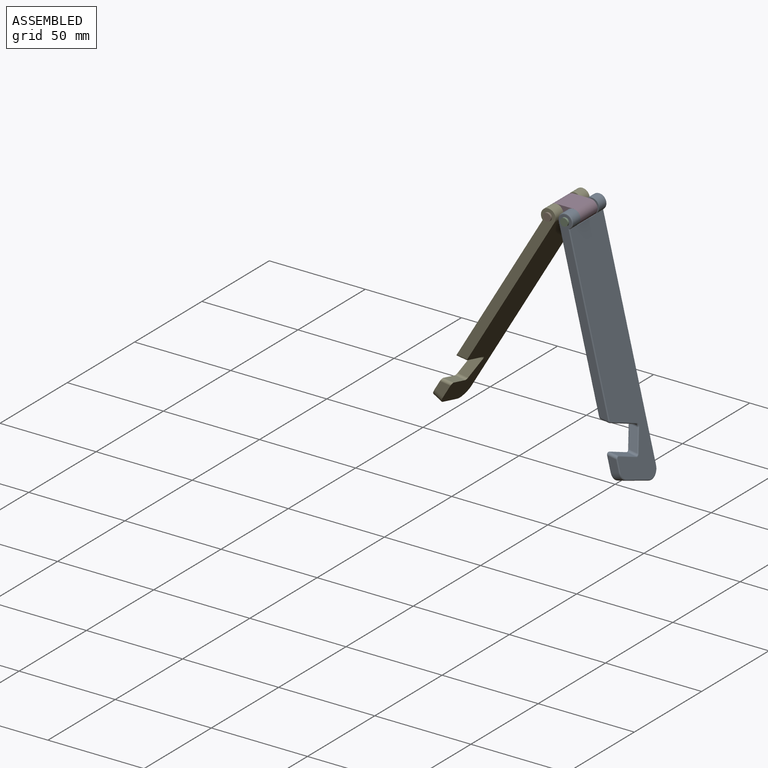
[diagram: assembled view]
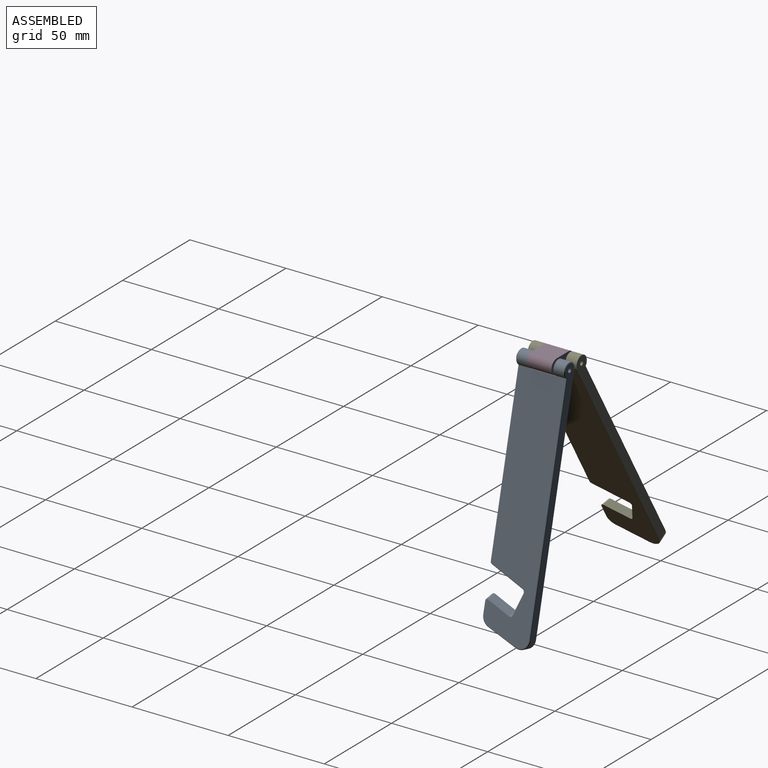
[diagram: assembled view, second angle]
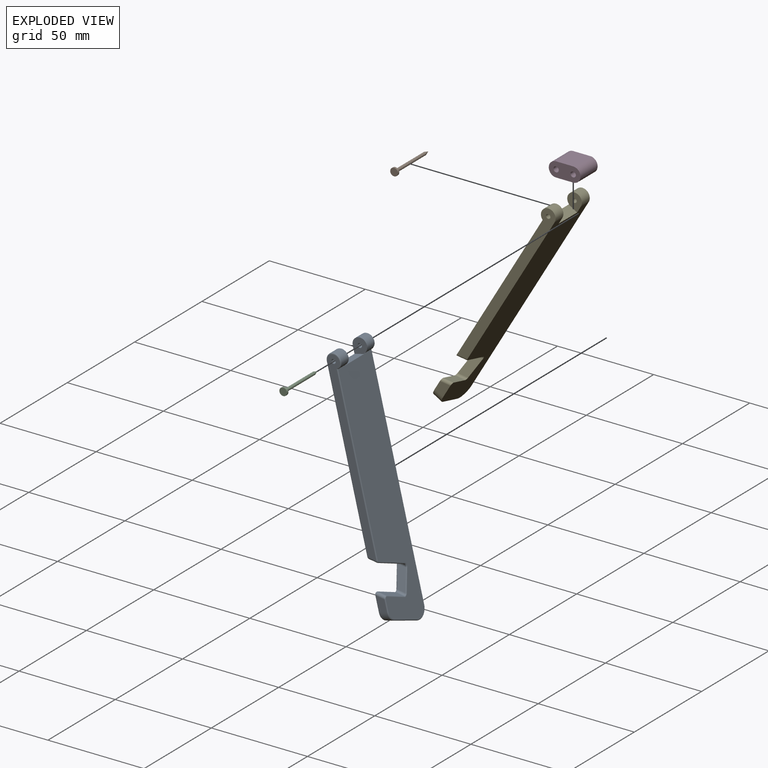
[diagram: exploded view]
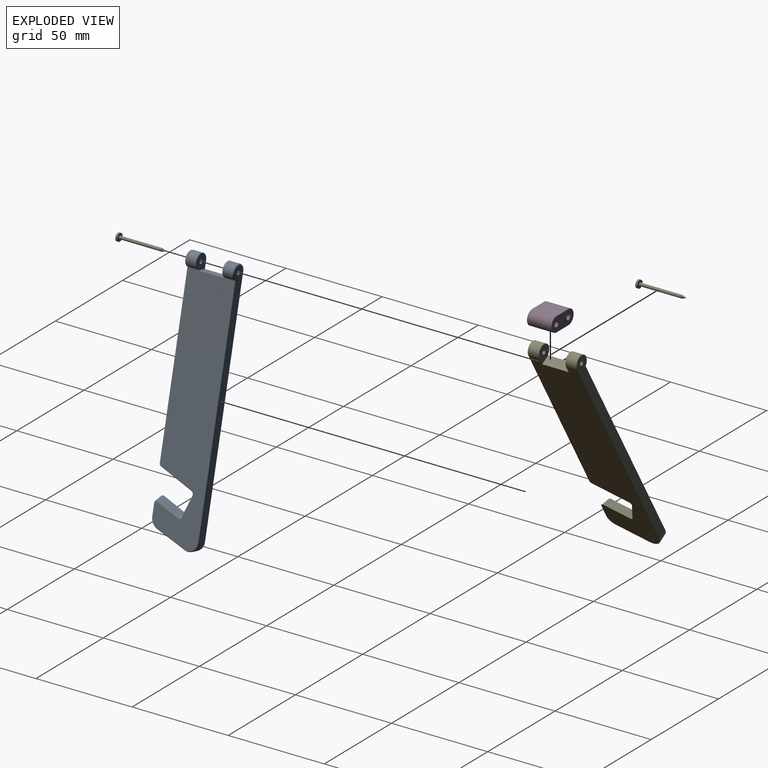
[diagram: exploded view, second angle]
ASSEMBLY  parts=5 mates=5
PART A: 50 faces, bbox 129.4x26.2x8.2 mm
  f0: plane 120.73x24.38mm, normal (0,0,1), area 2606.6mm2, adj f2,f11,f13,f14,f15,f23,f25,f27
  f1: plane 124.32x24.38mm, normal (0,0,-1), area 2644.9mm2, adj f2,f11,f13,f14,f15,f24,f26,f28
  f2: cylinder r=3.81mm len=7.62mm, axis (0,-1,0), area 88.9mm2, adj f0,f1,f14,f49
  f3: cylinder r=1.1mm len=5.84mm, axis (0,-1,0), area 40.4mm2, adj f6,f14
  f4: plane 7.75x4.06mm, normal (0,-1,0), area 28.1mm2, adj f16,f20,f39,f40
  f5: plane 93.89x6.6mm, normal (0,-1,0), area 384.1mm2, adj f12,f21,f22,f23,f24
  f6: plane 123.05x6.6mm, normal (0,1,0), area 506mm2, adj f3,f17,f47,f48,f49
  f7: plane 17.02x8.39mm, normal (0.87,-0.34,-0.36), area 79.7mm2, adj f18,f21,f27,f28
  f8: plane 11.87x4.06mm, normal (-0.35,-0.93,0.14), area 44.7mm2, adj f18,f19,f31,f32
  f9: plane 11.45x6.2mm, normal (-0.87,0.34,0.36), area 53.6mm2, adj f19,f20,f35,f36
  f10: plane 15.24x5.55mm, normal (0.94,-0.34,0), area 65.9mm2, adj f16,f17,f43,f44
  f11: cylinder r=3.81mm len=7.62mm, axis (0,-1,0), area 88.9mm2, adj f0,f1,f15,f22
  f12: cylinder r=1.1mm len=5.84mm, axis (0,-1,0), area 40.4mm2, adj f5,f15
  f13: plane 13.72x5.08mm, normal (-1,0,0), area 69.7mm2, adj f0,f1,f14,f15
  f14: plane 7.62x7.62mm, normal (0,-1,0), area 45mm2, adj f0,f1,f2,f3,f13
  f15: plane 7.62x7.62mm, normal (0,1,0), area 45mm2, adj f0,f1,f11,f12,f13
  f16: cylinder r=5.08mm len=4.77mm, axis (0,0,1), area 25.2mm2, adj f4,f10,f41,f42
  f17: cylinder r=5.08mm len=6.82mm, axis (0,0,-1), area 39.6mm2, adj f6,f10,f45,f46
  f18: cylinder r=1.27mm len=5.6mm, axis (0.38,0,0.92), area 9mm2, adj f7,f8,f29,f30
  f19: cylinder r=1.27mm len=4.79mm, axis (0.38,0,0.92), area 8.6mm2, adj f8,f9,f33,f34
  f20: cylinder r=1.27mm len=4.84mm, axis (0.38,0,0.92), area 10.7mm2, adj f4,f9,f37,f38
  f21: cylinder r=1.27mm len=4.79mm, axis (0.38,0,0.92), area 6.8mm2, adj f5,f7,f25,f26
  f22: torus R=3.3mm, axis (0,1,0), area 12.8mm2, adj f5,f11,f23,f24
  f23: cylinder r=0.51mm len=87.38mm, axis (-1,0,0), area 69.5mm2, adj f0,f5,f22,f25
  f24: cylinder r=0.51mm len=88.91mm, axis (1,0,0), area 70.9mm2, adj f1,f5,f22,f26
  f25: bspline ~1.76x1.12mm, area 1.3mm2, adj f0,f21,f23,f27
  f26: bspline ~1.49x1.12mm, area 0.9mm2, adj f1,f21,f24,f28
  f27: cylinder r=0.51mm len=17.21mm, axis (0.37,0.93,0), area 18mm2, adj f0,f7,f25,f29
  f28: cylinder r=0.51mm len=17.19mm, axis (-0.37,-0.93,0), area 11.2mm2, adj f1,f7,f26,f30
  f29: bspline ~2.53x1.36mm, area 2.2mm2, adj f0,f18,f27,f31
  f30: bspline ~2.53x1.34mm, area 1.9mm2, adj f1,f18,f28,f32
  f31: cylinder r=0.51mm len=10.36mm, axis (0.94,-0.35,0), area 7.9mm2, adj f0,f8,f29,f33
  f32: cylinder r=0.51mm len=10.36mm, axis (-0.94,0.35,0), area 9.5mm2, adj f1,f8,f30,f34
  f33: bspline ~2.26x1.38mm, area 1.5mm2, adj f0,f19,f31,f35
  f34: bspline ~2.26x1.38mm, area 2.1mm2, adj f1,f19,f32,f36
  f35: cylinder r=0.51mm len=11.63mm, axis (-0.37,-0.93,0), area 7.5mm2, adj f0,f9,f33,f37
  f36: cylinder r=0.51mm len=11.64mm, axis (0.37,0.93,0), area 12.1mm2, adj f1,f9,f34,f38
  f37: bspline ~1.82x1.52mm, area 1.4mm2, adj f0,f20,f35,f39
  f38: bspline ~1.94x1.81mm, area 2.1mm2, adj f1,f20,f36,f40
  f39: cylinder r=0.51mm len=6.07mm, axis (-1,0,0), area 4.8mm2, adj f0,f4,f37,f41
  f40: cylinder r=0.51mm len=7.75mm, axis (1,0,0), area 6.2mm2, adj f1,f4,f38,f42
  f41: torus R=4.57mm, axis (0,0,1), area 4.8mm2, adj f0,f16,f39,f43
  f42: torus R=4.57mm, axis (0,0,1), area 4.8mm2, adj f1,f16,f40,f44
  f43: cylinder r=0.51mm len=15.41mm, axis (0.34,0.94,0), area 12.9mm2, adj f0,f10,f41,f45
  f44: cylinder r=0.51mm len=15.41mm, axis (0.34,0.94,0), area 12.9mm2, adj f1,f10,f42,f46
  f45: torus R=4.57mm, axis (0,0,1), area 7.5mm2, adj f0,f17,f43,f47
  f46: torus R=4.57mm, axis (0,0,1), area 7.5mm2, adj f1,f17,f44,f48
  f47: cylinder r=0.51mm len=116.53mm, axis (1,0,0), area 92.8mm2, adj f0,f6,f45,f49
  f48: cylinder r=0.51mm len=119.75mm, axis (-1,0,0), area 95.6mm2, adj f1,f6,f46,f49
  f49: torus R=3.3mm, axis (0,1,0), area 12.8mm2, adj f2,f6,f47,f48
PART B: 5 faces, bbox 4x4x25.4 mm
  f0: plane 4x4mm, normal (0,0,1), area 12.6mm2, adj f4
  f1: cone r=0mm half-angle=17.6deg, axis (0,0,1), area 6.6mm2, adj f2
  f2: cylinder r=0.79mm len=21.89mm, axis (0,0,1), area 109.2mm2, adj f1,f3
  f3: plane 4x4mm, normal (0,0,-1), area 10.6mm2, adj f2,f4
  f4: cylinder r=2mm len=4mm, axis (0,0,1), area 12.6mm2, adj f0,f3
PART C: same geometry as B
PART D: 8 faces, bbox 16.5x12.7x7.6 mm
  f0: plane 16.51x7.62mm, normal (0,-1,0), area 101.5mm2, adj f2,f3,f4,f5,f6,f7
  f1: plane 16.51x7.62mm, normal (0,1,0), area 101.5mm2, adj f2,f3,f4,f5,f6,f7
  f2: plane 12.7x8.89mm, normal (0,0,1), area 112.9mm2, adj f0,f1,f6,f7
  f3: plane 12.7x8.89mm, normal (0,0,-1), area 112.9mm2, adj f0,f1,f6,f7
  f4: cylinder r=1.38mm len=12.7mm, axis (0,1,0), area 109.7mm2, adj f0,f1
  f5: cylinder r=1.38mm len=12.7mm, axis (0,1,0), area 109.7mm2, adj f0,f1
  f6: cylinder r=3.81mm len=12.7mm, axis (0,-1,0), area 152mm2, adj f0,f1,f2,f3
  f7: cylinder r=3.81mm len=12.7mm, axis (0,1,0), area 152mm2, adj f0,f1,f2,f3
PART E: 22 faces, bbox 128.4x25.4x8.2 mm
  f0: cylinder r=3.81mm len=7.62mm, axis (0,-1,0), area 97.3mm2, adj f2,f4,f5,f15
  f1: cylinder r=1.1mm len=5.84mm, axis (0,-1,0), area 40.4mm2, adj f5,f15
  f2: plane 121.03x25.4mm, normal (0,0,-1), area 2741.8mm2, adj f0,f3,f5,f6,f7,f8,f9,f10
  f3: plane 7.3x5.08mm, normal (0,-1,0), area 31.7mm2, adj f2,f4,f16,f19
  f4: plane 124.62x25.4mm, normal (0,0,1), area 2783.7mm2, adj f0,f3,f5,f6,f7,f8,f9,f10
  f5: plane 94.6x7.62mm, normal (0,-1,0), area 481.5mm2, adj f0,f1,f2,f4,f18
  f6: plane 123.35x7.62mm, normal (0,1,0), area 632.9mm2, adj f2,f4,f11,f12,f17
  f7: plane 17.07x8.83mm, normal (0.87,-0.34,0.36), area 99.9mm2, adj f2,f4,f18,f21
  f8: plane 11.85x6.77mm, normal (-0.87,0.34,-0.36), area 69.4mm2, adj f2,f4,f19,f20
  f9: plane 12.44x5.08mm, normal (-0.32,-0.94,-0.13), area 55.9mm2, adj f2,f4,f20,f21
  f10: plane 15.24x6mm, normal (0.93,-0.37,0), area 83.2mm2, adj f2,f4,f16,f17
  f11: cylinder r=3.81mm len=7.62mm, axis (0,-1,0), area 97.3mm2, adj f2,f4,f6,f14
  f12: cylinder r=1.1mm len=5.84mm, axis (0,-1,0), area 40.4mm2, adj f6,f14
  f13: plane 13.72x5.08mm, normal (-1,0,0), area 69.7mm2, adj f2,f4,f14,f15
  f14: plane 7.62x7.62mm, normal (0,-1,0), area 45mm2, adj f2,f4,f11,f12,f13
  f15: plane 7.62x7.62mm, normal (0,1,0), area 45mm2, adj f0,f1,f2,f4,f13
  f16: cylinder r=5.08mm len=5.08mm, axis (0,0,1), area 30.9mm2, adj f2,f3,f4,f10
  f17: cylinder r=5.08mm len=6.94mm, axis (0,0,-1), area 50.2mm2, adj f2,f4,f6,f10
  f18: cylinder r=1.27mm len=5.99mm, axis (0.38,0,-0.92), area 8.5mm2, adj f2,f4,f5,f7
  f19: cylinder r=1.27mm len=6.05mm, axis (0.38,0,-0.92), area 13.4mm2, adj f2,f3,f4,f8
  f20: cylinder r=1.27mm len=5.72mm, axis (-0.38,0,0.92), area 11mm2, adj f2,f4,f8,f9
  f21: cylinder r=1.27mm len=6.33mm, axis (-0.38,0,0.92), area 11mm2, adj f2,f4,f7,f9
PLACE A rot(axis=(0,1,0),76.3deg) t=(30.2,72.08,2.91)mm
PLACE B rot(axis=(0.78,-0.44,0.44),103.8deg) t=(25.01,34.99,3.81)mm
PLACE C rot(axis=(0.65,0.54,-0.54),114.1deg) t=(33.9,34.99,3.81)mm
PLACE D at identity fixed
PLACE E rot(axis=(0,1,0),120.7deg) t=(23.92,35.99,4.46)mm
MATE cylindrical D.f5 <-> E.f0  axis (0,-1,0) through (25.01,41.83,3.81)mm
MATE planar D.f5 <-> E.f0  axis (0,-1,0) through (25.01,41.83,3.81)mm
MATE cylindrical D.f4 <-> A.f2  axis (0,-1,0) through (33.9,41.83,3.81)mm
MATE revolute C.f1 <-> A.f2  axis (0,-1,0) through (33.9,35.99,3.81)mm
MATE planar D.f4 <-> A.f2  axis (0,-1,0) through (33.9,41.83,3.81)mm
